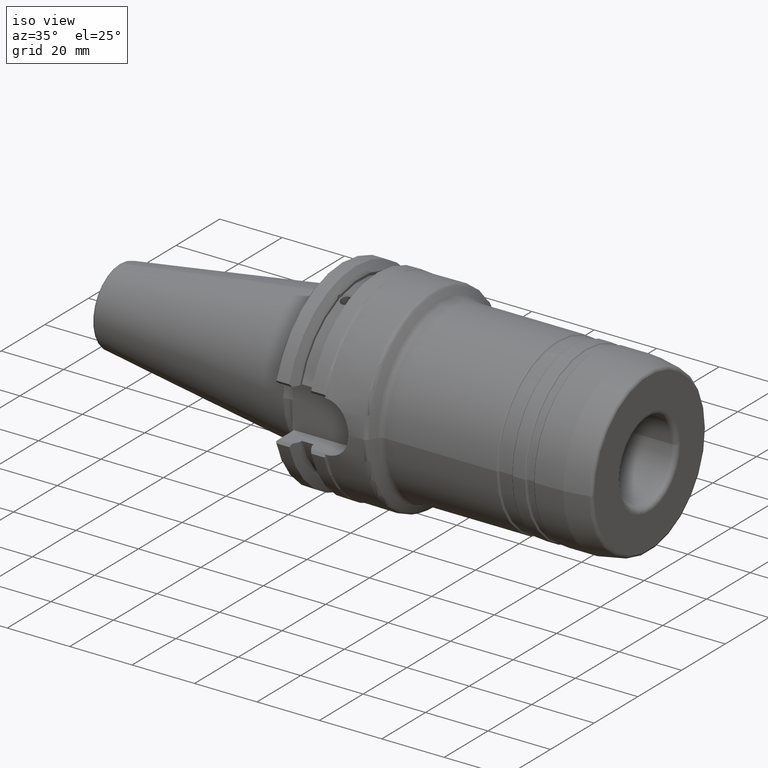
[diagram: clean part render]
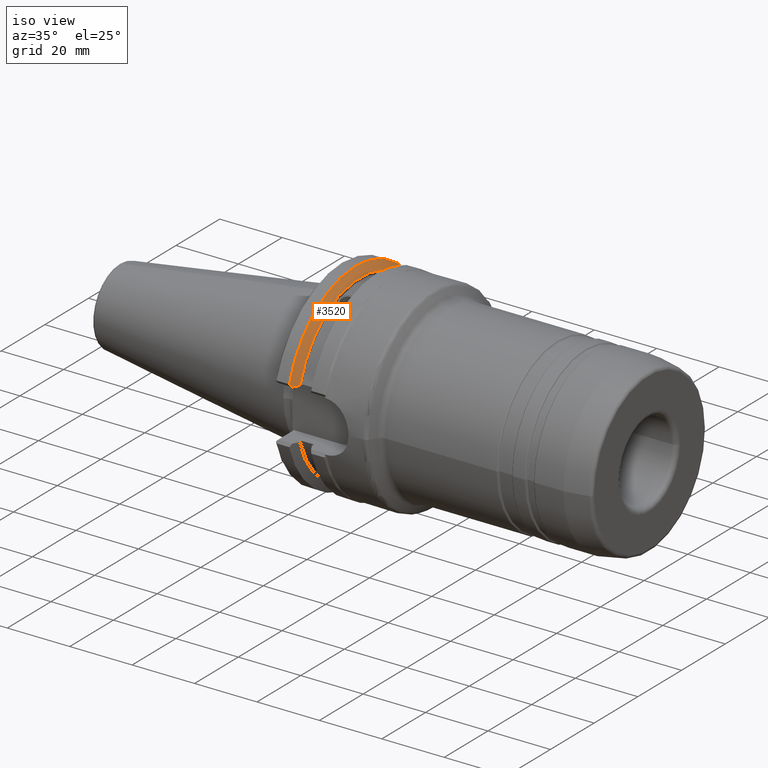
[diagram: same view with one face highlighted and labeled with its STEP entity id]
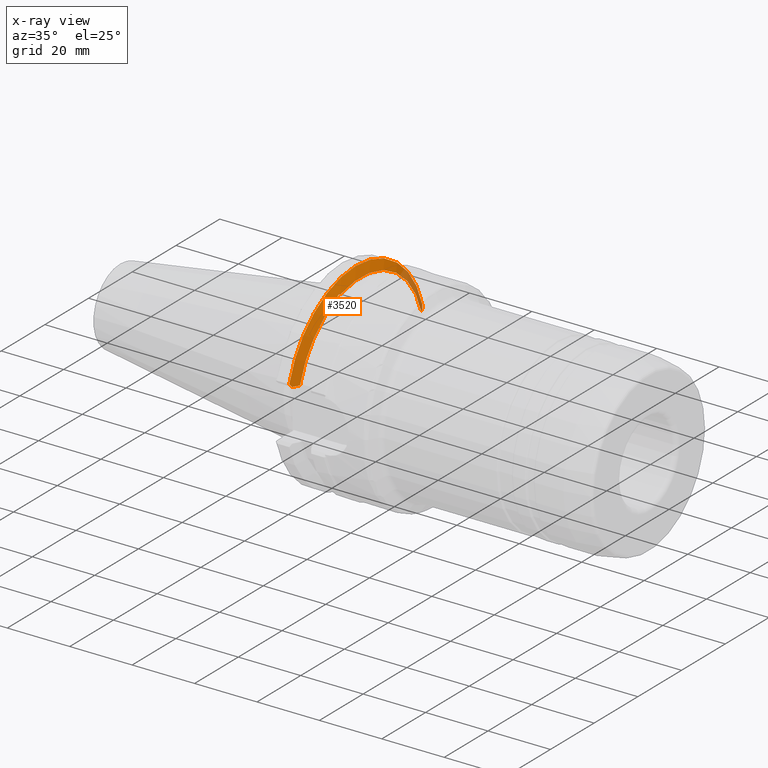
[diagram: x-ray of the same camera — body ghosted, the highlighted face saturated]
A machine part, iso view. The second image highlights one B-rep face of the part: STEP entity #3520.
The next image is the same camera in x-ray: the body ghosted, the highlighted face saturated — about 9% of this face is hidden behind the body in this view.
In plain terms, the highlighted conical surface has half-angle 60 deg.
Its self-contained STEP definition (entity closure, byte-faithful):
#595=CARTESIAN_POINT('',(9.2191E0,-1.071020574925E1,2.690618531059E1));
#596=CARTESIAN_POINT('',(9.184596827446E0,-1.065939318046E1,2.699073343701E1));
#597=CARTESIAN_POINT('',(9.125439677838E0,-1.054902969653E1,2.714425266799E1));
#598=CARTESIAN_POINT('',(9.066208567552E0,-1.036274638272E1,2.732566638321E1));
#599=CARTESIAN_POINT('',(9.034989583538E0,-1.015597707604E1,2.746084399783E1));
#600=CARTESIAN_POINT('',(9.031672173618E0,-9.938203587958E0,2.754647583445E1));
#601=CARTESIAN_POINT('',(9.052026122412E0,-9.721477302138E0,2.758628796179E1));
#602=CARTESIAN_POINT('',(9.092027819861E0,-9.505150638063E0,2.758827408227E1));
#603=CARTESIAN_POINT('',(9.149180862350E0,-9.290791383580E0,2.755671497778E1));
#604=CARTESIAN_POINT('',(9.194707745176E0,-9.156407639834E0,2.751841880522E1));
#605=CARTESIAN_POINT('',(9.2191E0,-9.090468942703E0,2.749572129551E1));
#607=CARTESIAN_POINT('',(9.2191E0,0.E0,0.E0));
#608=DIRECTION('',(1.E0,0.E0,0.E0));
#609=DIRECTION('',(0.E0,-3.698342240179E-1,9.290977595200E-1));
#610=AXIS2_PLACEMENT_3D('',#607,#608,#609);
#612=CARTESIAN_POINT('',(9.2191E0,-2.777724275660E1,8.19E0));
#613=CARTESIAN_POINT('',(9.100004436185E0,-2.799230184175E1,8.19E0));
#614=CARTESIAN_POINT('',(8.860060979749E0,-2.842518482368E1,8.19E0));
#615=CARTESIAN_POINT('',(8.494908006267E0,-2.908279917371E1,8.19E0));
#616=CARTESIAN_POINT('',(8.247976093806E0,-2.952676307978E1,8.19E0));
#617=CARTESIAN_POINT('',(8.123639020472E0,-2.975013277281E1,8.19E0));
#619=CARTESIAN_POINT('',(7.607990865E0,-3.042082819764E1,9.090418679549E0));
#620=CARTESIAN_POINT('',(7.695827202243E0,-3.030750581618E1,8.938281680694E0));
#621=CARTESIAN_POINT('',(7.869605602884E0,-3.008240105924E1,8.636075164136E0));
#622=CARTESIAN_POINT('',(8.039593216595E0,-2.986037569154E1,8.338002773885E0));
#623=CARTESIAN_POINT('',(8.123639020472E0,-2.975013277281E1,8.19E0));
#625=CARTESIAN_POINT('',(7.607990865E0,0.E0,0.E0));
#626=DIRECTION('',(-1.E0,0.E0,0.E0));
#627=DIRECTION('',(0.E0,-9.581363211856E-1,2.863123993559E-1));
#628=AXIS2_PLACEMENT_3D('',#625,#626,#627);
#630=CARTESIAN_POINT('',(8.123639020472E0,2.975013277281E1,8.19E0));
#631=CARTESIAN_POINT('',(8.039100933267E0,2.986102141980E1,8.338869673775E0));
#632=CARTESIAN_POINT('',(7.868614064527E0,3.008369062664E1,8.637806427737E0));
#633=CARTESIAN_POINT('',(7.695328138794E0,3.030814968477E1,8.939146083944E0));
#634=CARTESIAN_POINT('',(7.607990865E0,3.042082819764E1,9.090418679549E0));
#636=CARTESIAN_POINT('',(8.123639020472E0,2.975013277281E1,8.19E0));
#637=CARTESIAN_POINT('',(8.247937579506E0,2.952683227014E1,8.19E0));
#638=CARTESIAN_POINT('',(8.494818240530E0,2.908296065829E1,8.19E0));
#639=CARTESIAN_POINT('',(8.859971936954E0,2.842534536140E1,8.19E0));
#640=CARTESIAN_POINT('',(9.099966323800E0,2.799237066391E1,8.19E0));
#641=CARTESIAN_POINT('',(9.2191E0,2.777724275660E1,8.19E0));
#643=CARTESIAN_POINT('',(9.2191E0,0.E0,0.E0));
#644=DIRECTION('',(1.E0,0.E0,0.E0));
#645=DIRECTION('',(0.E0,9.591762530767E-1,2.828089735736E-1));
#646=AXIS2_PLACEMENT_3D('',#643,#644,#645);
#2433=CARTESIAN_POINT('',(9.2191E0,2.777724275660E1,8.19E0));
#2435=VERTEX_POINT('',#2433);
#2449=CARTESIAN_POINT('',(9.2191E0,-2.777724275660E1,8.19E0));
#2451=VERTEX_POINT('',#2449);
#2465=VERTEX_POINT('',#630);
#2466=VERTEX_POINT('',#634);
#2475=VERTEX_POINT('',#619);
#2476=VERTEX_POINT('',#623);
#2669=VERTEX_POINT('',#595);
#2670=VERTEX_POINT('',#605);
#3498=CARTESIAN_POINT('',(8.413545432500E0,0.E0,0.E0));
#3499=DIRECTION('',(-1.E0,0.E0,0.E0));
#3500=DIRECTION('',(0.E0,0.E0,-1.E0));
#3501=AXIS2_PLACEMENT_3D('',#3498,#3499,#3500);
#3502=CONICAL_SURFACE('',#3501,3.035473856082E1,6.E1);
#3503=ORIENTED_EDGE('',*,*,#3355,.F.);
#3505=ORIENTED_EDGE('',*,*,#3504,.T.);
#3507=ORIENTED_EDGE('',*,*,#3506,.T.);
#3509=ORIENTED_EDGE('',*,*,#3508,.F.);
#3511=ORIENTED_EDGE('',*,*,#3510,.T.);
#3513=ORIENTED_EDGE('',*,*,#3512,.F.);
#3515=ORIENTED_EDGE('',*,*,#3514,.T.);
#3517=ORIENTED_EDGE('',*,*,#3516,.T.);
#3518=EDGE_LOOP('',(#3503,#3505,#3507,#3509,#3511,#3513,#3515,#3517));
#3519=FACE_OUTER_BOUND('',#3518,.F.);
#3520=ADVANCED_FACE('',(#3519),#3502,.T.);
#606=B_SPLINE_CURVE_WITH_KNOTS('',3,(#595,#596,#597,#598,#599,#600,#601,#602,
#603,#604,#605),.UNSPECIFIED.,.F.,.F.,(4,1,1,1,1,1,1,1,4),(0.E0,1.25E-1,2.5E-1,
3.75E-1,5.E-1,6.25E-1,7.5E-1,8.75E-1,1.E0),.UNSPECIFIED.);
#611=CIRCLE('',#610,2.895947712164E1);
#618=B_SPLINE_CURVE_WITH_KNOTS('',3,(#612,#613,#614,#615,#616,#617),
.UNSPECIFIED.,.F.,.F.,(4,1,1,4),(0.E0,3.333333333333E-1,6.666666666667E-1,1.E0),
.UNSPECIFIED.);
#624=B_SPLINE_CURVE_WITH_KNOTS('',3,(#619,#620,#621,#622,#623),.UNSPECIFIED.,
.F.,.F.,(4,1,4),(0.E0,5.E-1,1.E0),.UNSPECIFIED.);
#629=CIRCLE('',#628,3.175E1);
#635=B_SPLINE_CURVE_WITH_KNOTS('',3,(#630,#631,#632,#633,#634),.UNSPECIFIED.,
.F.,.F.,(4,1,4),(0.E0,5.E-1,1.E0),.UNSPECIFIED.);
#642=B_SPLINE_CURVE_WITH_KNOTS('',3,(#636,#637,#638,#639,#640,#641),
.UNSPECIFIED.,.F.,.F.,(4,1,1,4),(0.E0,3.333333333333E-1,6.666666666667E-1,1.E0),
.UNSPECIFIED.);
#647=CIRCLE('',#646,2.895947712164E1);
#3355=EDGE_CURVE('',#2669,#2670,#606,.T.);
#3504=EDGE_CURVE('',#2669,#2451,#611,.T.);
#3506=EDGE_CURVE('',#2451,#2476,#618,.T.);
#3508=EDGE_CURVE('',#2475,#2476,#624,.T.);
#3510=EDGE_CURVE('',#2475,#2466,#629,.T.);
#3512=EDGE_CURVE('',#2465,#2466,#635,.T.);
#3514=EDGE_CURVE('',#2465,#2435,#642,.T.);
#3516=EDGE_CURVE('',#2435,#2670,#647,.T.);